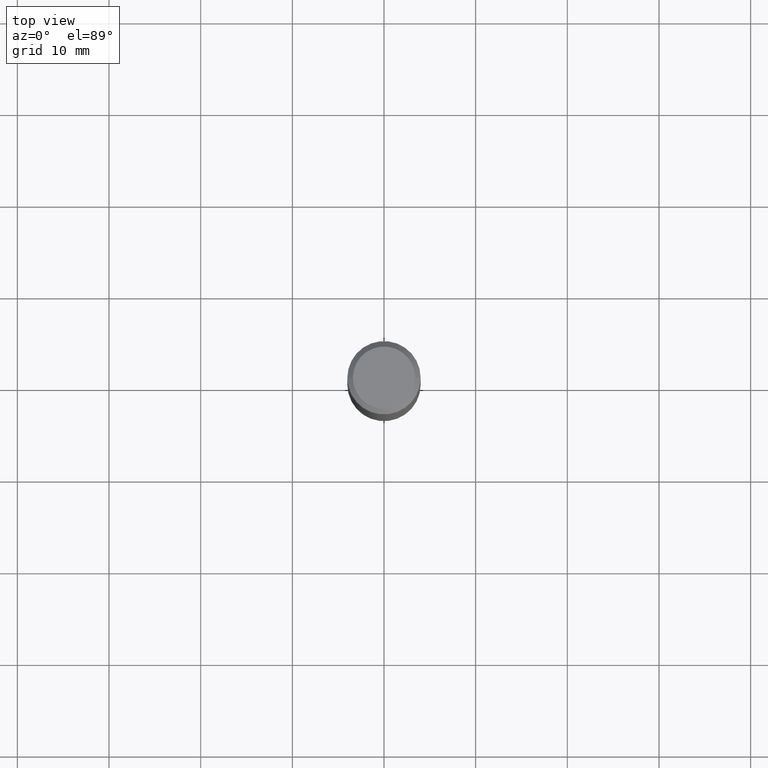
[diagram: clean part render]
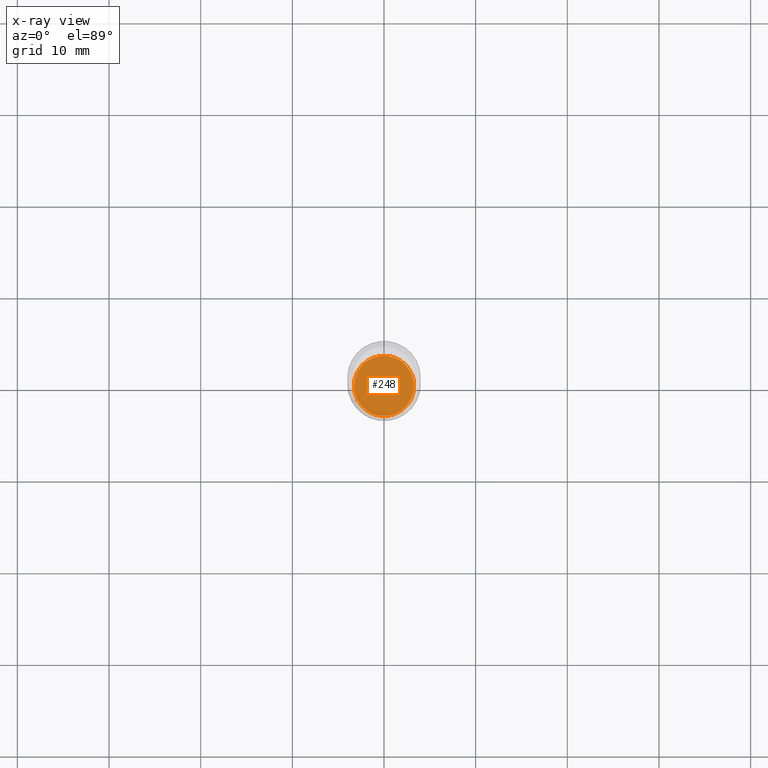
[diagram: x-ray — body ghosted, one internal face saturated and labeled with its STEP entity id]
A machine part, top view, then the same camera in x-ray: the body is ghosted and one INTERNAL B-rep face — a face not visible from any outside direction — is saturated and labeled: STEP entity #248.
In plain terms, the highlighted planar face has unit normal (-0, 0, 1).
Its self-contained STEP definition (entity closure, byte-faithful):
#26 = CIRCLE ( 'NONE', #478, 0.1293999999999999873 ) ;
#46 = CIRCLE ( 'NONE', #76, 0.1293999999999999873 ) ;
#67 = DIRECTION ( 'NONE',  ( 1.000000000000000000, -6.982962677686265133E-15, 0.000000000000000000 ) ) ;
#76 = AXIS2_PLACEMENT_3D ( 'NONE', #407, #340, #67 ) ;
#97 = EDGE_CURVE ( 'NONE', #338, #98, #46, .T. ) ;
#98 = VERTEX_POINT ( 'NONE', #224 ) ;
#112 = ORIENTED_EDGE ( 'NONE', *, *, #437, .F. ) ;
#149 = DIRECTION ( 'NONE',  ( -2.438088387897960049E-29, 3.491481338843145188E-15, 1.000000000000000000 ) ) ;
#150 = ORIENTED_EDGE ( 'NONE', *, *, #97, .F. ) ;
#194 = FACE_OUTER_BOUND ( 'NONE', #225, .T. ) ;
#198 = CARTESIAN_POINT ( 'NONE',  ( 4.967725332884486328E-29, -7.092595191725966323E-15, -2.031400000000000095 ) ) ;
#217 = CARTESIAN_POINT ( 'NONE',  ( 4.967725332884486328E-29, -7.092595191725966323E-15, -2.031400000000000095 ) ) ;
#220 = PLANE ( 'NONE',  #319 ) ;
#224 = CARTESIAN_POINT ( 'NONE',  ( 0.1293999999999999873, -7.996190562218568913E-15, -2.031400000000000095 ) ) ;
#225 = EDGE_LOOP ( 'NONE', ( #112, #150 ) ) ;
#242 = CARTESIAN_POINT ( 'NONE',  ( -0.1293999999999999873, -6.170503664478285769E-15, -2.031400000000000095 ) ) ;
#248 = ADVANCED_FACE ( 'NONE', ( #194 ), #220, .F. ) ;
#319 = AXIS2_PLACEMENT_3D ( 'NONE', #217, #149, #344 ) ;
#338 = VERTEX_POINT ( 'NONE', #242 ) ;
#340 = DIRECTION ( 'NONE',  ( -2.445468806185136597E-29, 3.491481338843145583E-15, 1.000000000000000000 ) ) ;
#344 = DIRECTION ( 'NONE',  ( 1.000000000000000000, -6.982962677686265922E-15, 4.876176775795935793E-29 ) ) ;
#347 = DIRECTION ( 'NONE',  ( -2.445468806185136597E-29, 3.491481338843145583E-15, 1.000000000000000000 ) ) ;
#407 = CARTESIAN_POINT ( 'NONE',  ( 4.967725332884486328E-29, -7.092595191725966323E-15, -2.031400000000000095 ) ) ;
#424 = DIRECTION ( 'NONE',  ( 1.000000000000000000, -6.982962677686265133E-15, 0.000000000000000000 ) ) ;
#437 = EDGE_CURVE ( 'NONE', #98, #338, #26, .T. ) ;
#478 = AXIS2_PLACEMENT_3D ( 'NONE', #198, #347, #424 ) ;